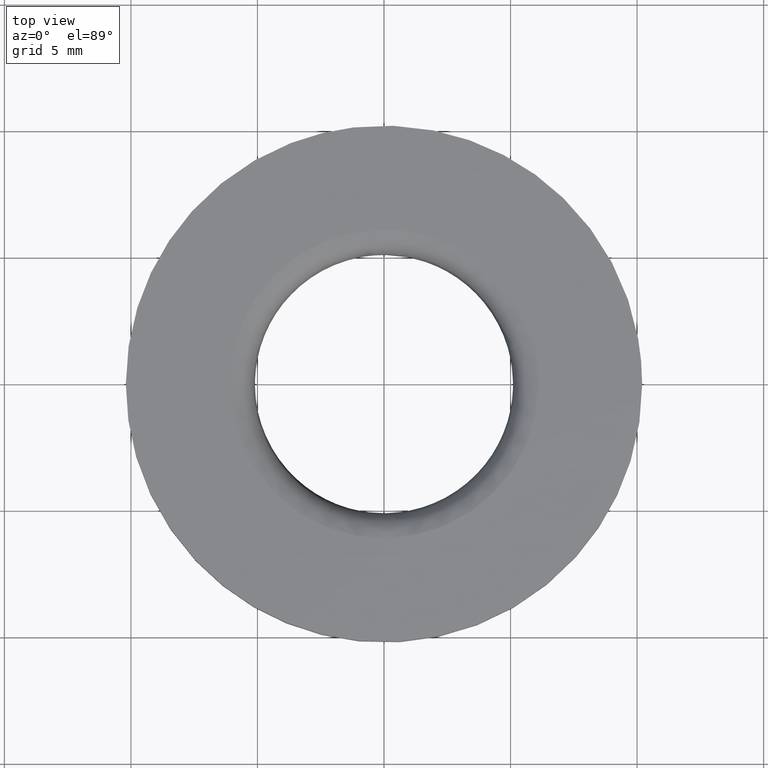
[diagram: clean part render]
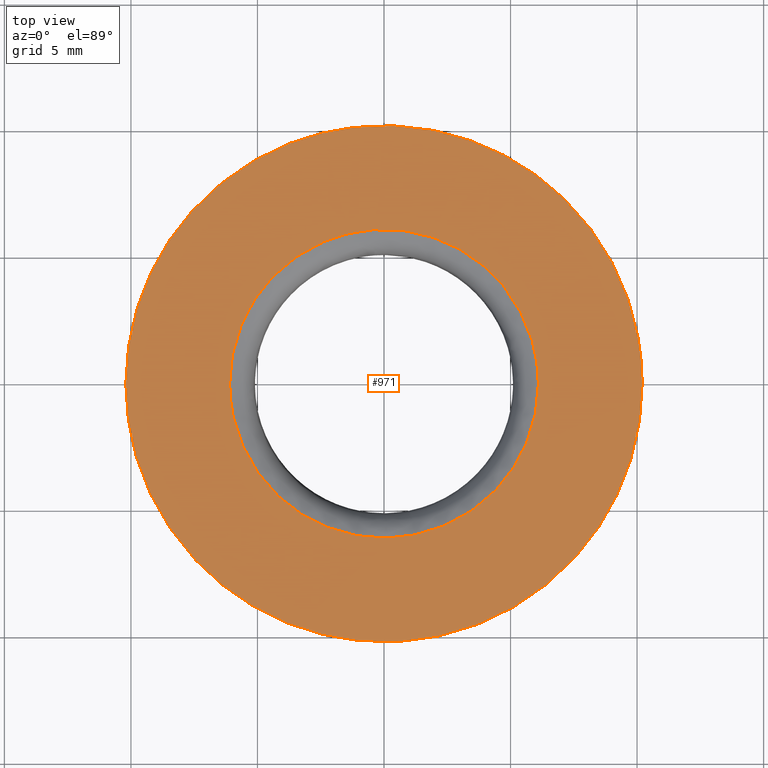
[diagram: same view with one face highlighted and labeled with its STEP entity id]
A machine part, top view. The second image highlights one B-rep face of the part: STEP entity #971.
In plain terms, the highlighted face is a freeform B-spline surface patch.
Its self-contained STEP definition (entity closure, byte-faithful):
#85=CARTESIAN_POINT('',(-1.203942705108498,10.128696933109209,2.0));
#86=VERTEX_POINT('',#85);
#92=CARTESIAN_POINT('',(10.199999000000000,0.0,2.0));
#93=VERTEX_POINT('',#92);
#94=CARTESIAN_POINT('',(-1.203942705108499,10.128696933109207,2.000000000000000));
#95=CARTESIAN_POINT('',(-0.604082742374266,10.199999000000000,2.000000000000000));
#96=CARTESIAN_POINT('',(0.0,10.199999000000000,2.0));
#97=CARTESIAN_POINT('',(10.199999000000002,10.199999000000002,2.000000000000000));
#98=CARTESIAN_POINT('',(10.199999000000000,0.0,2.0));
#106=(BOUNDED_CURVE()B_SPLINE_CURVE(2,(#94,#95,#96,#97,#98),.UNSPECIFIED.,.F.,.U.)B_SPLINE_CURVE_WITH_KNOTS((3,2,3),(0.229562579808786,0.250000000000000,0.500000000000000),.UNSPECIFIED.)CURVE()GEOMETRIC_REPRESENTATION_ITEM()RATIONAL_B_SPLINE_CURVE((0.956026962526900,0.976056072863809,1.0,0.707106781186548,1.0))REPRESENTATION_ITEM(''));
#107=EDGE_CURVE('',#86,#93,#106,.T.);
#109=CARTESIAN_POINT('',(0.622691443881657,-10.180974165849969,2.0));
#110=VERTEX_POINT('',#109);
#111=CARTESIAN_POINT('',(10.199999000000000,0.0,2.0));
#112=CARTESIAN_POINT('',(10.199999000000002,-9.595204339361704,2.000000000000000));
#113=CARTESIAN_POINT('',(0.622691443881657,-10.180974165849973,2.0));
#121=(BOUNDED_CURVE()B_SPLINE_CURVE(2,(#111,#112,#113),.UNSPECIFIED.,.F.,.U.)B_SPLINE_CURVE_WITH_KNOTS((3,3),(0.500000000000000,0.739333023226263),.UNSPECIFIED.)CURVE()GEOMETRIC_REPRESENTATION_ITEM()RATIONAL_B_SPLINE_CURVE((1.0,0.719603921835620,0.976072172374189))REPRESENTATION_ITEM(''));
#122=EDGE_CURVE('',#93,#110,#121,.T.);
#196=CARTESIAN_POINT('',(-10.199999000000000,0.0,2.0));
#197=VERTEX_POINT('',#196);
#198=CARTESIAN_POINT('',(0.622691443881657,-10.180974165849973,2.0));
#199=CARTESIAN_POINT('',(0.311636350885541,-10.199999000000000,2.000000000000000));
#200=CARTESIAN_POINT('',(0.0,-10.199999000000000,2.0));
#201=CARTESIAN_POINT('',(-10.199999000000002,-10.199999000000002,2.000000000000000));
#202=CARTESIAN_POINT('',(-10.199999000000000,0.0,2.0));
#210=(BOUNDED_CURVE()B_SPLINE_CURVE(2,(#198,#199,#200,#201,#202),.UNSPECIFIED.,.F.,.U.)B_SPLINE_CURVE_WITH_KNOTS((3,2,3),(0.739333023226263,0.750000000000000,1.0),.UNSPECIFIED.)CURVE()GEOMETRIC_REPRESENTATION_ITEM()RATIONAL_B_SPLINE_CURVE((0.976072172374189,0.987502859350927,1.0,0.707106781186548,1.0))REPRESENTATION_ITEM(''));
#211=EDGE_CURVE('',#110,#197,#210,.T.);
#213=CARTESIAN_POINT('',(-10.199999000000000,0.0,2.0));
#214=CARTESIAN_POINT('',(-10.199999000000002,9.059385014459993,1.999999999999999));
#215=CARTESIAN_POINT('',(-1.203942705108499,10.128696933109207,2.000000000000000));
#223=(BOUNDED_CURVE()B_SPLINE_CURVE(2,(#213,#214,#215),.UNSPECIFIED.,.F.,.U.)B_SPLINE_CURVE_WITH_KNOTS((3,3),(0.0,0.229562579808786),.UNSPECIFIED.)CURVE()GEOMETRIC_REPRESENTATION_ITEM()RATIONAL_B_SPLINE_CURVE((1.0,0.731050708322738,0.956026962526900))REPRESENTATION_ITEM(''));
#224=EDGE_CURVE('',#197,#86,#223,.T.);
#735=CARTESIAN_POINT('',(0.076651926034370,-6.099521031390859,1.999999999997277));
#736=VERTEX_POINT('',#735);
#752=CARTESIAN_POINT('',(6.100001000000000,0.0,2.0));
#753=VERTEX_POINT('',#752);
#754=CARTESIAN_POINT('',(6.100001000000000,0.0,2.0));
#755=CARTESIAN_POINT('',(6.100001010366924,-6.023825523718734,1.999999999998638));
#756=CARTESIAN_POINT('',(0.076651926034370,-6.099521031390860,1.999999999997278));
#764=(BOUNDED_CURVE()B_SPLINE_CURVE(2,(#754,#755,#756),.UNSPECIFIED.,.F.,.U.)B_SPLINE_CURVE_WITH_KNOTS((3,3),(0.500000000000000,0.747784323328991),.UNSPECIFIED.)CURVE()GEOMETRIC_REPRESENTATION_ITEM()RATIONAL_B_SPLINE_CURVE((1.0,0.709702607874634,0.994854358724905))REPRESENTATION_ITEM(''));
#765=EDGE_CURVE('',#753,#736,#764,.T.);
#767=CARTESIAN_POINT('',(-0.425372904353591,6.085151607931273,2.0));
#768=VERTEX_POINT('',#767);
#769=CARTESIAN_POINT('',(-0.425372904353591,6.085151607931273,2.000000000000000));
#770=CARTESIAN_POINT('',(-0.212945641759247,6.100000999999999,2.0));
#771=CARTESIAN_POINT('',(0.0,6.100001000000000,2.0));
#772=CARTESIAN_POINT('',(6.100001000000002,6.100001000000002,2.000000000000000));
#773=CARTESIAN_POINT('',(6.100001000000000,0.0,2.0));
#781=(BOUNDED_CURVE()B_SPLINE_CURVE(2,(#769,#770,#771,#772,#773),.UNSPECIFIED.,.F.,.U.)B_SPLINE_CURVE_WITH_KNOTS((3,2,3),(0.237833686534324,0.250000000000000,0.500000000000000),.UNSPECIFIED.)CURVE()GEOMETRIC_REPRESENTATION_ITEM()RATIONAL_B_SPLINE_CURVE((0.972879876385353,0.985746277151779,1.0,0.707106781186548,1.0))REPRESENTATION_ITEM(''));
#782=EDGE_CURVE('',#768,#753,#781,.T.);
#851=CARTESIAN_POINT('',(-6.100001000000000,0.0,2.0));
#852=VERTEX_POINT('',#851);
#853=CARTESIAN_POINT('',(-6.100001000000000,0.0,2.0));
#854=CARTESIAN_POINT('',(-6.100001000000002,5.688475700836355,1.999999999999999));
#855=CARTESIAN_POINT('',(-0.425372904353591,6.085151607931273,2.000000000000000));
#863=(BOUNDED_CURVE()B_SPLINE_CURVE(2,(#853,#854,#855),.UNSPECIFIED.,.F.,.U.)B_SPLINE_CURVE_WITH_KNOTS((3,3),(0.0,0.237833686534324),.UNSPECIFIED.)CURVE()GEOMETRIC_REPRESENTATION_ITEM()RATIONAL_B_SPLINE_CURVE((1.0,0.721360504034769,0.972879876385352))REPRESENTATION_ITEM(''));
#864=EDGE_CURVE('',#852,#768,#863,.T.);
#866=CARTESIAN_POINT('',(0.076651926034370,-6.099521031390860,1.999999999997278));
#867=CARTESIAN_POINT('',(0.038327486370042,-6.100002644762438,1.999999999997286));
#868=CARTESIAN_POINT('',(0.000000020604387,-6.100002639579179,1.999999999997294));
#869=CARTESIAN_POINT('',(-6.100000989762539,-6.100001814638698,1.999999999998656));
#870=CARTESIAN_POINT('',(-6.100001000000000,0.0,2.0));
#878=(BOUNDED_CURVE()B_SPLINE_CURVE(2,(#866,#867,#868,#869,#870),.UNSPECIFIED.,.F.,.U.)B_SPLINE_CURVE_WITH_KNOTS((3,2,3),(0.747784323328991,0.750000000000000,1.0),.UNSPECIFIED.)CURVE()GEOMETRIC_REPRESENTATION_ITEM()RATIONAL_B_SPLINE_CURVE((0.994854358724905,0.997404173311913,1.0,0.707106781186548,1.0))REPRESENTATION_ITEM(''));
#879=EDGE_CURVE('',#736,#852,#878,.T.);
#954=CARTESIAN_POINT('',(-11.218978860560849,-11.218731176153220,2.0));
#955=CARTESIAN_POINT('',(11.218979407731430,-11.218731176153220,2.0));
#956=CARTESIAN_POINT('',(-11.218978860560849,11.218793371209760,2.0));
#957=CARTESIAN_POINT('',(11.218979407731430,11.218793371209760,2.0));
#958=B_SPLINE_SURFACE_WITH_KNOTS('',1,1,((#954,#956),(#955,#957)),.UNSPECIFIED.,.F.,.F.,.U.,(2,2),(2,2),(0.0,22.437958268292281),(0.0,22.437524547362980),.UNSPECIFIED.);
#959=ORIENTED_EDGE('',*,*,#211,.F.);
#960=ORIENTED_EDGE('',*,*,#122,.F.);
#961=ORIENTED_EDGE('',*,*,#107,.F.);
#962=ORIENTED_EDGE('',*,*,#224,.F.);
#963=EDGE_LOOP('',(#959,#960,#961,#962));
#964=FACE_OUTER_BOUND('',#963,.T.);
#965=ORIENTED_EDGE('',*,*,#765,.T.);
#966=ORIENTED_EDGE('',*,*,#879,.T.);
#967=ORIENTED_EDGE('',*,*,#864,.T.);
#968=ORIENTED_EDGE('',*,*,#782,.T.);
#969=EDGE_LOOP('',(#965,#966,#967,#968));
#970=FACE_BOUND('',#969,.T.);
#971=ADVANCED_FACE('',(#964,#970),#958,.T.);